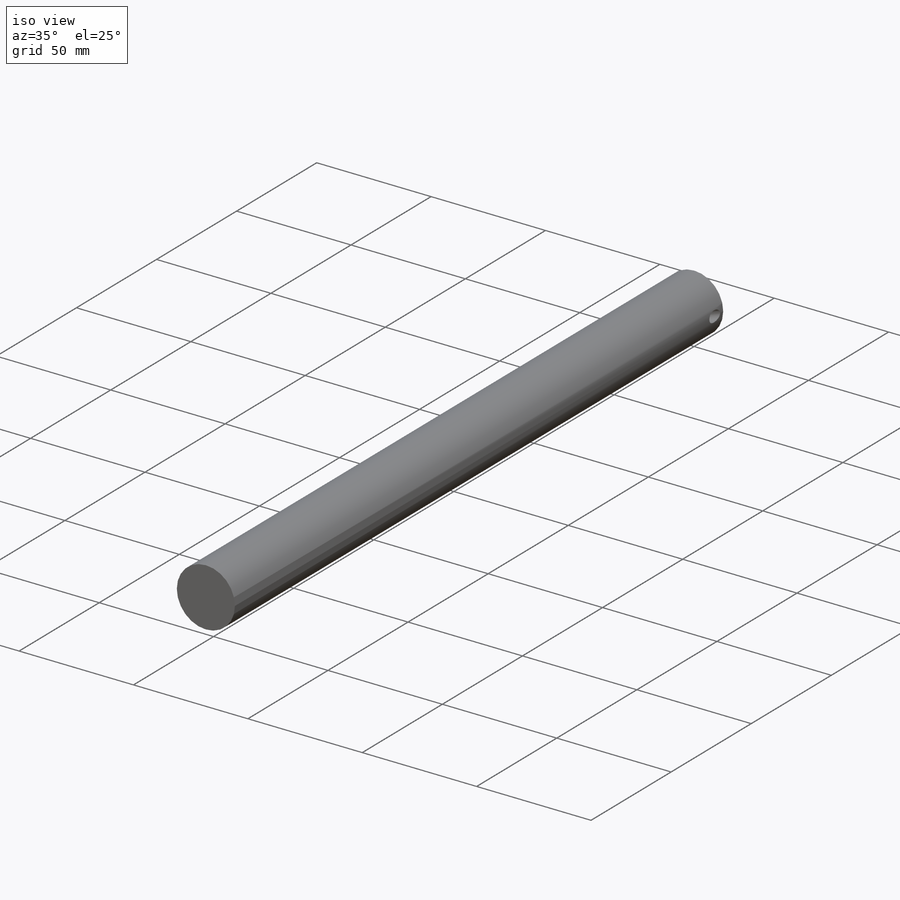
[diagram: iso view]
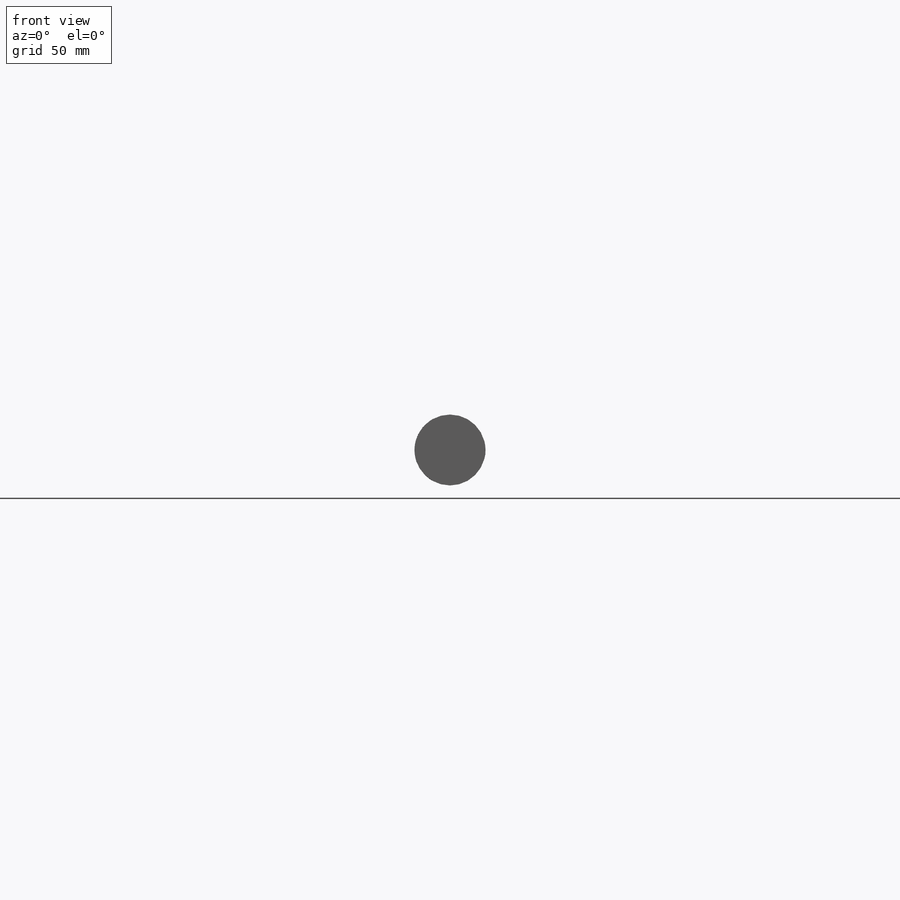
[diagram: front view]
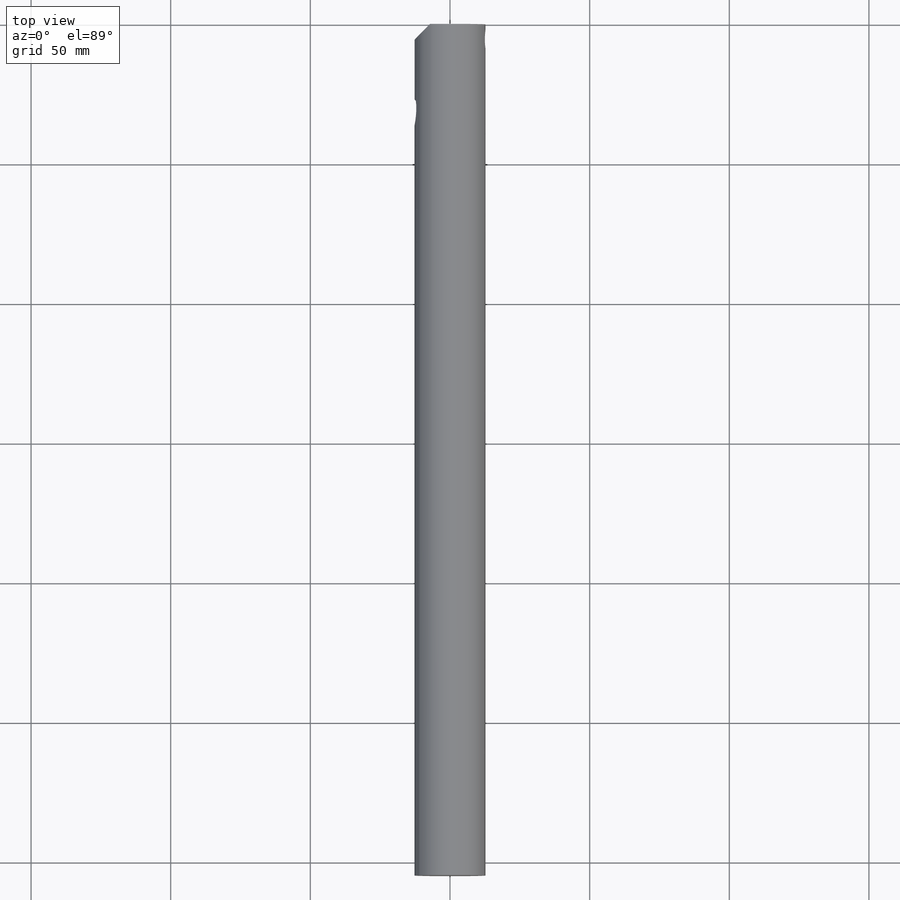
[diagram: top view]
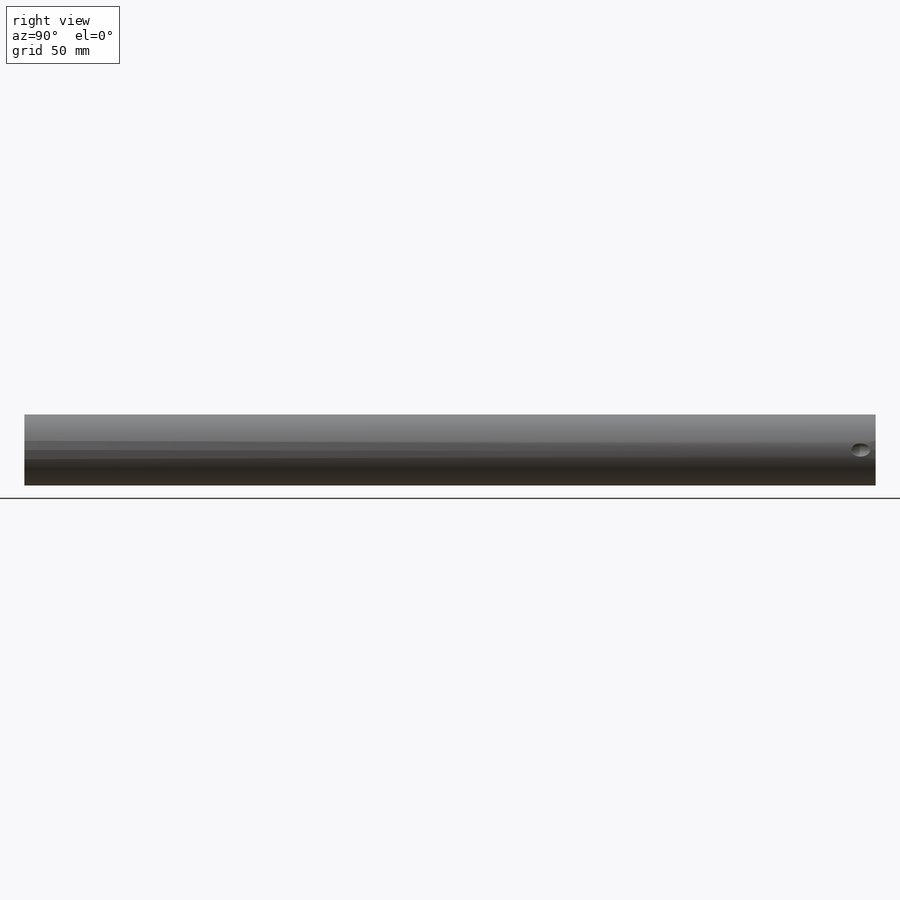
[diagram: right view]
SOLIDWORKS PART (.sldprt)
format: sldprt  version: not decoded by parser v0  size: 226,304 bytes
history: native  units: mm
features: sketch x8, plane x4, cut_extrude x3, material x1, extrude x1, hole x1, thread x1 (+12 scaffold rows collapsed)
feature tree (31):
  scaffold x12  (default folders/planes/origin — collapsed)
  material  "Plain Carbon Steel"
  sketch  "Sketch1"  dims[D1=25.4mm]
  extrude  "Extrude1"  Depth=304.8mm
  sketch  "Sketch3"
  plane  "Plane1"
  sketch  "Sketch4"  dims[D1=4.7625mm D2=12.7mm]
  cut_extrude  "Extrude2"  [1 undecoded]
  plane  "Plane2"
  plane  "Plane3"  Offset=5.08mm
  sketch  "Sketch6"
  cut_extrude  "Extrude3"  Depth=63.5mm
  sketch  "Sketch7"  dims[D1=3.302mm]
  hole  "#10-24 Tapped Hole1"  Diameter=3.7973mm Depth=15.411314mm
  sketch  "3DSketch1"
  sketch  "Sketch9"  dims[hole-wizard template sketch: 60 standard entries collapsed; hole parameters kept: c18.Thru Tap Drill Depth=~15.411314mm]
  thread  "Hole Thread1"  Diameter=4.826mm  [1 undecoded]
  plane  "Plane4"  Offset=27.94mm
  sketch  "Sketch10"  dims[D1=7.9375mm]
  cut_extrude  "Extrude4"  [1 undecoded]
decode coverage: 9 of 14 modeling features carry decoded parameters
note: ~ marks probable driven/reference dimensions
note: 3 parameter values undecoded
note: suppression state not decoded; provenance and decode notes live in map.json
